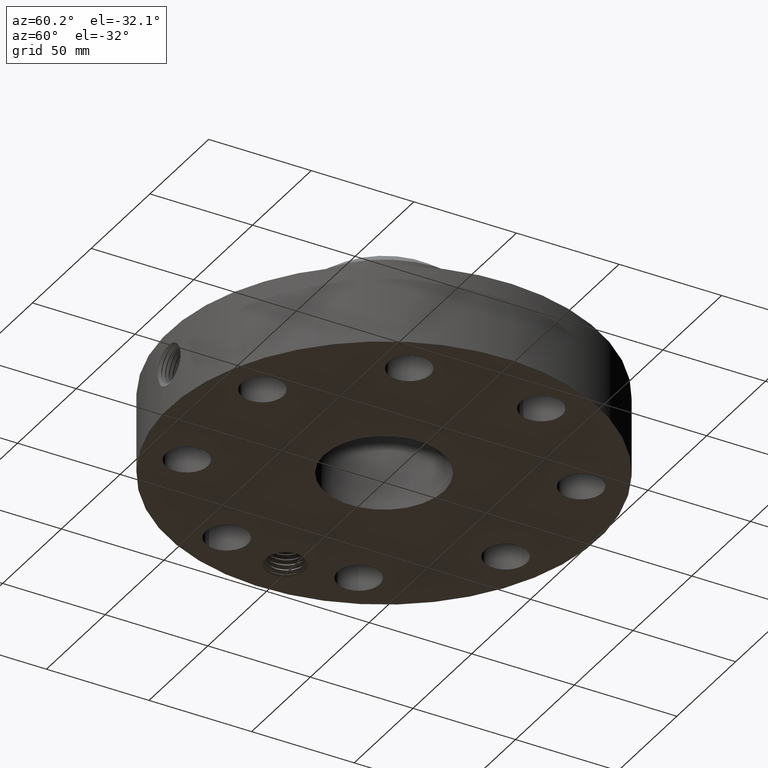
[diagram: clean part render]
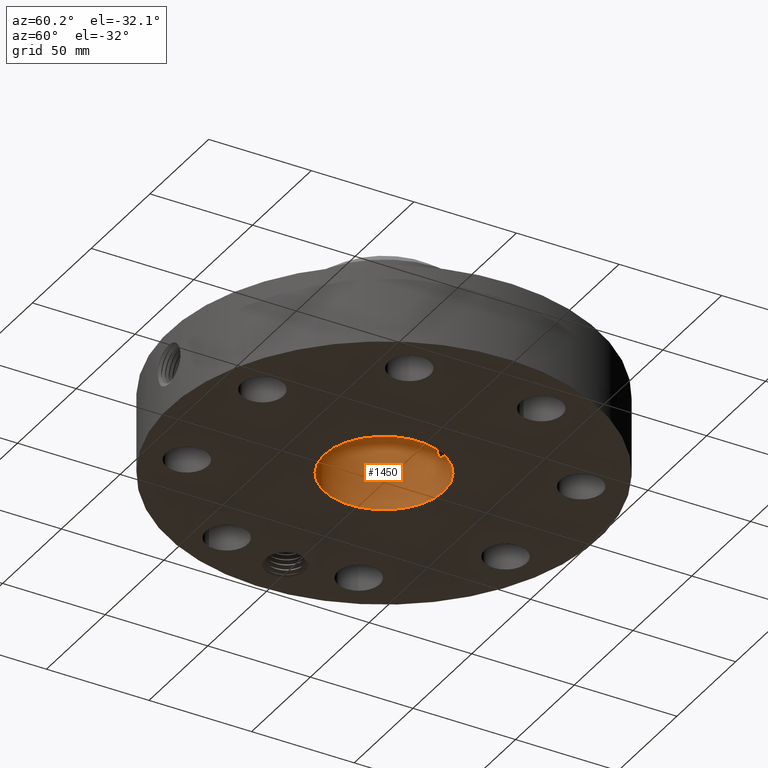
[diagram: same view with one face highlighted and labeled with its STEP entity id]
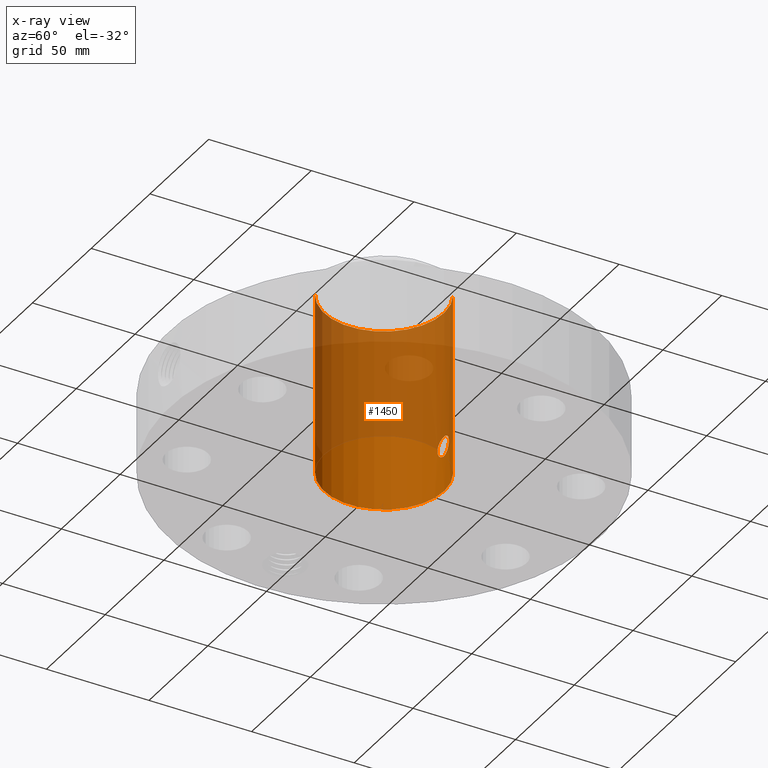
[diagram: x-ray of the same camera — body ghosted, the highlighted face saturated]
A machine part, auxiliary view. The second image highlights one B-rep face of the part: STEP entity #1450.
The next image is the same camera in x-ray: the body ghosted, the highlighted face saturated — about 67% of this face is hidden behind the body in this view.
In plain terms, the highlighted cylindrical surface (partial cylindrical patch) has radius 29.21 mm, axis along (0, 0, -1).
Its self-contained STEP definition (entity closure, byte-faithful):
#251=AXIS2_PLACEMENT_3D('Circle Axis2P3D',#249,#250,$) ;
#1327=AXIS2_PLACEMENT_3D('Cylinder Axis2P3D',#1324,#1325,#1326) ;
#1399=AXIS2_PLACEMENT_3D('Circle Axis2P3D',#1397,#1398,$) ;
#244=CARTESIAN_POINT('Vertex',(0.551339369397,1.00921994618,0.0600000000002)) ;
#246=CARTESIAN_POINT('Vertex',(-0.551339369397,-1.00921994618,0.0600000000002)) ;
#249=CARTESIAN_POINT('Axis2P3D Location',(0.,0.,0.0600000000002)) ;
#1324=CARTESIAN_POINT('Axis2P3D Location',(0.,0.,1.81000000001)) ;
#1333=CARTESIAN_POINT('Vertex',(0.551339369397,1.00921994618,3.56000000001)) ;
#1335=CARTESIAN_POINT('Vertex',(-0.551339369397,-1.00921994618,3.56000000001)) ;
#1338=CARTESIAN_POINT('Line Origine',(0.551339369397,1.00921994618,1.81000000001)) ;
#1343=CARTESIAN_POINT('Line Origine',(-0.551339369397,-1.00921994618,1.81000000001)) ;
#1397=CARTESIAN_POINT('Axis2P3D Location',(0.,0.,3.56000000001)) ;
#1409=CARTESIAN_POINT('Control Point',(0.16674068676,1.13784776811,1.03109085234)) ;
#1410=CARTESIAN_POINT('Control Point',(0.155854325366,1.13944306005,1.0510182032)) ;
#1411=CARTESIAN_POINT('Control Point',(0.142001217673,1.14134011032,1.06930062737)) ;
#1412=CARTESIAN_POINT('Control Point',(0.125504434545,1.14334720129,1.08536808497)) ;
#1413=CARTESIAN_POINT('Control Point',(0.0790212134104,1.14797603774,1.11869332616)) ;
#1414=CARTESIAN_POINT('Control Point',(0.022797075608,1.15055722118,1.13331052054)) ;
#1415=CARTESIAN_POINT('Control Point',(-0.012417548367,1.15073155023,1.13425785882)) ;
#1416=CARTESIAN_POINT('Control Point',(-0.0864532992562,1.14800992216,1.11918255522)) ;
#1417=CARTESIAN_POINT('Control Point',(-0.145717367993,1.14133930427,1.07163775571)) ;
#1418=CARTESIAN_POINT('Control Point',(-0.170168506599,1.13747922455,1.03808280897)) ;
#1419=CARTESIAN_POINT('Control Point',(-0.193158594035,1.13368180249,0.977397444285)) ;
#1420=CARTESIAN_POINT('Control Point',(-0.190336176654,1.13413354695,0.913891438782)) ;
#1421=CARTESIAN_POINT('Control Point',(-0.185742661257,1.13492690107,0.890944178454)) ;
#1422=CARTESIAN_POINT('Control Point',(-0.177762089684,1.13623268712,0.869083690398)) ;
#1423=CARTESIAN_POINT('Control Point',(-0.16674068676,1.13784776811,0.848909147669)) ;
#1424=CARTESIAN_POINT('Vertex',(0.16674068676,1.13784776811,1.03109085234)) ;
#1426=CARTESIAN_POINT('Vertex',(-0.16674068676,1.13784776811,0.848909147669)) ;
#1430=CARTESIAN_POINT('Control Point',(-0.16674068676,1.13784776811,0.848909147669)) ;
#1431=CARTESIAN_POINT('Control Point',(-0.155854325364,1.13944306005,0.8289817968)) ;
#1432=CARTESIAN_POINT('Control Point',(-0.142001217668,1.14134011032,0.810699372633)) ;
#1433=CARTESIAN_POINT('Control Point',(-0.12550443455,1.14334720129,0.794631915044)) ;
#1434=CARTESIAN_POINT('Control Point',(-0.0790212134144,1.14797603774,0.761306673846)) ;
#1435=CARTESIAN_POINT('Control Point',(-0.0227970756091,1.15055722118,0.746689479464)) ;
#1436=CARTESIAN_POINT('Control Point',(0.0124175483681,1.15073155023,0.74574214119)) ;
#1437=CARTESIAN_POINT('Control Point',(0.0864532992536,1.14800992216,0.760817444789)) ;
#1438=CARTESIAN_POINT('Control Point',(0.145717367988,1.14133930427,0.808362244297)) ;
#1439=CARTESIAN_POINT('Control Point',(0.170168506602,1.13747922455,0.84191719104)) ;
#1440=CARTESIAN_POINT('Control Point',(0.193158594034,1.13368180249,0.902602555726)) ;
#1441=CARTESIAN_POINT('Control Point',(0.190336176654,1.13413354695,0.966108561225)) ;
#1442=CARTESIAN_POINT('Control Point',(0.185742661257,1.13492690107,0.989055821554)) ;
#1443=CARTESIAN_POINT('Control Point',(0.177762089684,1.13623268712,1.01091630961)) ;
#1444=CARTESIAN_POINT('Control Point',(0.16674068676,1.13784776811,1.03109085234)) ;
#250=DIRECTION('Axis2P3D Direction',(0.,0.,-0.0393700787402)) ;
#1325=DIRECTION('Axis2P3D Direction',(0.,0.,-0.0393700787402)) ;
#1326=DIRECTION('Axis2P3D XDirection',(-0.0188750212049,-0.0345504945626,0.)) ;
#1339=DIRECTION('Vector Direction',(0.,0.,-0.0393700787402)) ;
#1344=DIRECTION('Vector Direction',(0.,0.,-0.0393700787402)) ;
#1398=DIRECTION('Axis2P3D Direction',(0.,0.,-0.0393700787402)) ;
#1340=VECTOR('Line Direction',#1339,0.0393700787402) ;
#1345=VECTOR('Line Direction',#1344,0.0393700787402) ;
#1403=ORIENTED_EDGE('',*,*,#1401,.F.) ;
#1404=ORIENTED_EDGE('',*,*,#1347,.T.) ;
#1405=ORIENTED_EDGE('',*,*,#253,.T.) ;
#1406=ORIENTED_EDGE('',*,*,#1342,.F.) ;
#1447=ORIENTED_EDGE('',*,*,#1428,.F.) ;
#1448=ORIENTED_EDGE('',*,*,#1445,.F.) ;
#1449=FACE_BOUND('',#1446,.T.) ;
#1450=ADVANCED_FACE('PartBody',(#1407,#1449),#1328,.F.) ;
#1408=B_SPLINE_CURVE_WITH_KNOTS('',5,(#1409,#1410,#1411,#1412,#1413,#1414,#1415,#1416,#1417,#1418,#1419,#1420,#1421,#1422,#1423),.UNSPECIFIED.,.F.,.U.,(6,3,3,3,6),(0.,4.08836309621,10.192375956,17.3385389512,21.4776167711),.UNSPECIFIED.) ;
#1429=B_SPLINE_CURVE_WITH_KNOTS('',5,(#1430,#1431,#1432,#1433,#1434,#1435,#1436,#1437,#1438,#1439,#1440,#1441,#1442,#1443,#1444),.UNSPECIFIED.,.F.,.U.,(6,3,3,3,6),(0.,4.08836309683,10.1923759566,17.3385389512,21.4776167711),.UNSPECIFIED.) ;
#252=CIRCLE('generated circle',#251,1.15) ;
#1400=CIRCLE('generated circle',#1399,1.15) ;
#1328=CYLINDRICAL_SURFACE('generated cylinder',#1327,1.15) ;
#253=EDGE_CURVE('',#247,#245,#252,.T.) ;
#1342=EDGE_CURVE('',#1334,#245,#1341,.T.) ;
#1347=EDGE_CURVE('',#1336,#247,#1346,.T.) ;
#1401=EDGE_CURVE('',#1336,#1334,#1400,.T.) ;
#1428=EDGE_CURVE('',#1425,#1427,#1408,.T.) ;
#1445=EDGE_CURVE('',#1427,#1425,#1429,.T.) ;
#1402=EDGE_LOOP('',(#1403,#1404,#1405,#1406)) ;
#1446=EDGE_LOOP('',(#1447,#1448)) ;
#1407=FACE_OUTER_BOUND('',#1402,.T.) ;
#1341=LINE('Line',#1338,#1340) ;
#1346=LINE('Line',#1343,#1345) ;
#245=VERTEX_POINT('',#244) ;
#247=VERTEX_POINT('',#246) ;
#1334=VERTEX_POINT('',#1333) ;
#1336=VERTEX_POINT('',#1335) ;
#1425=VERTEX_POINT('',#1424) ;
#1427=VERTEX_POINT('',#1426) ;